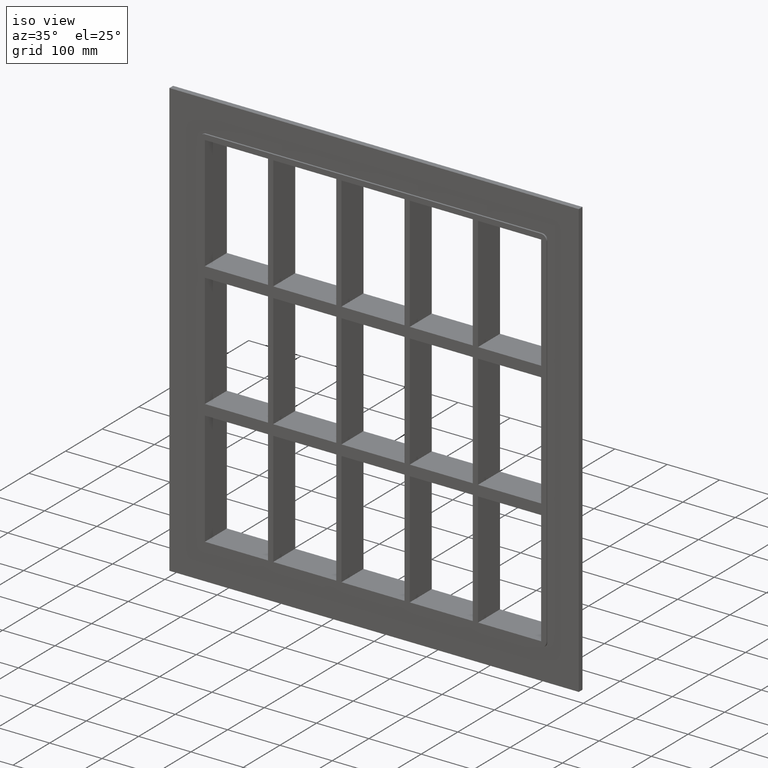
[diagram: clean part render]
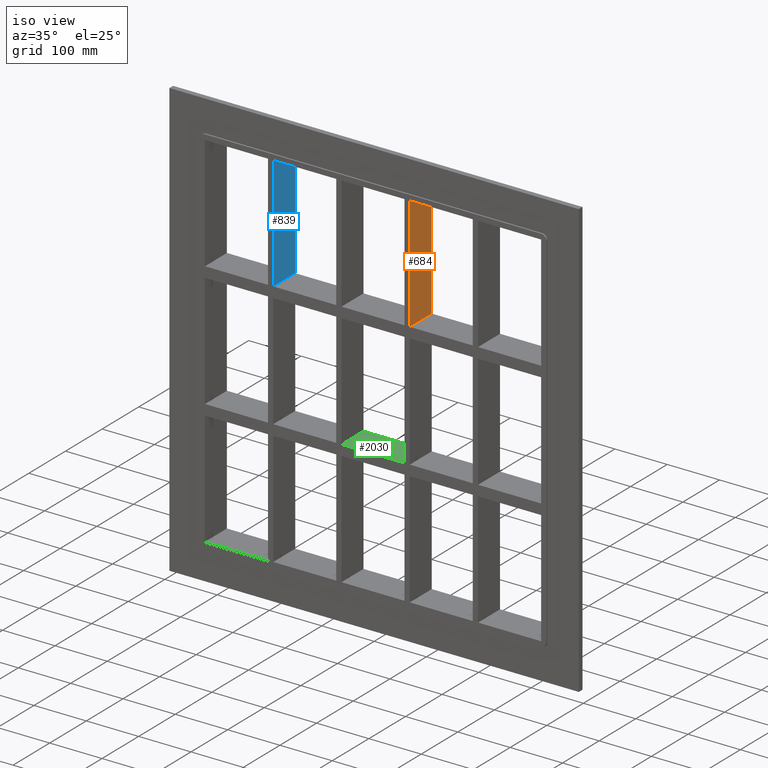
[diagram: same view with three faces highlighted in distinct colors, each labeled with its STEP entity id]
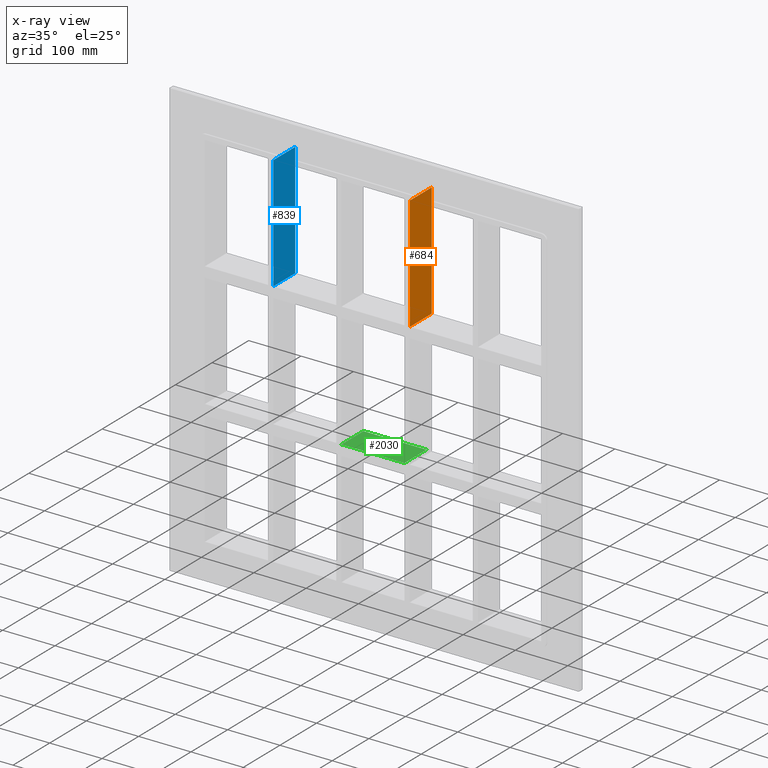
[diagram: x-ray of the same camera — body ghosted, the three highlighted faces saturated]
A machine part, iso view with three faces highlighted in distinct colors.
The next image is the same camera in x-ray (body ghosted, the three faces saturated) — at least one of them is partly hidden behind the body in this view.
Their STEP definitions:

[orange] entity #684 — the highlighted planar face has unit normal (1, 0, 0).
#443=CARTESIAN_POINT('',(70.249999999992738,57.0,128.99999999999994));
#444=VERTEX_POINT('',#443);
#451=CARTESIAN_POINT('',(70.249999999992738,-3.0,128.99999999999994));
#452=VERTEX_POINT('',#451);
#453=CARTESIAN_POINT('',(70.249999999992738,-3.0,128.99999999999994));
#454=DIRECTION('',(0.0,1.0,0.0));
#455=VECTOR('',#454,60.0);
#456=LINE('',#453,#455);
#457=EDGE_CURVE('',#452,#444,#456,.T.);
#654=CARTESIAN_POINT('',(70.249999999992738,-3.0,347.0));
#655=DIRECTION('',(1.0,0.0,0.0));
#656=DIRECTION('',(0.0,0.0,-1.0));
#657=AXIS2_PLACEMENT_3D('',#654,#655,#656);
#658=PLANE('',#657);
#659=ORIENTED_EDGE('',*,*,#457,.T.);
#660=CARTESIAN_POINT('',(70.249999999992738,57.0,347.0));
#661=VERTEX_POINT('',#660);
#662=CARTESIAN_POINT('',(70.249999999992738,57.0,347.0));
#663=DIRECTION('',(0.0,0.0,-1.0));
#664=VECTOR('',#663,218.00000000000009);
#665=LINE('',#662,#664);
#666=EDGE_CURVE('',#661,#444,#665,.T.);
#667=ORIENTED_EDGE('',*,*,#666,.F.);
#668=CARTESIAN_POINT('',(70.249999999992738,-3.0,347.0));
#669=VERTEX_POINT('',#668);
#670=CARTESIAN_POINT('',(70.249999999992738,-3.0,346.99999999999994));
#671=DIRECTION('',(0.0,1.0,0.0));
#672=VECTOR('',#671,60.000000000000007);
#673=LINE('',#670,#672);
#674=EDGE_CURVE('',#669,#661,#673,.T.);
#675=ORIENTED_EDGE('',*,*,#674,.F.);
#676=CARTESIAN_POINT('',(70.249999999992738,-3.0,347.0));
#677=DIRECTION('',(0.0,0.0,-1.0));
#678=VECTOR('',#677,218.00000000000009);
#679=LINE('',#676,#678);
#680=EDGE_CURVE('',#669,#452,#679,.T.);
#681=ORIENTED_EDGE('',*,*,#680,.T.);
#682=EDGE_LOOP('',(#659,#667,#675,#681));
#683=FACE_OUTER_BOUND('',#682,.T.);
#684=ADVANCED_FACE('',(#683),#658,.T.);

[blue] entity #839 — the highlighted planar face has unit normal (1, 0, 0).
#363=CARTESIAN_POINT('',(-190.75000000000728,57.0,128.99999999999994));
#364=VERTEX_POINT('',#363);
#371=CARTESIAN_POINT('',(-190.75000000000728,-3.0,128.99999999999994));
#372=VERTEX_POINT('',#371);
#373=CARTESIAN_POINT('',(-190.75000000000728,-3.0,128.99999999999994));
#374=DIRECTION('',(0.0,1.0,0.0));
#375=VECTOR('',#374,60.0);
#376=LINE('',#373,#375);
#377=EDGE_CURVE('',#372,#364,#376,.T.);
#809=CARTESIAN_POINT('',(-190.75000000000728,-3.0,347.0));
#810=DIRECTION('',(1.0,0.0,0.0));
#811=DIRECTION('',(0.0,0.0,-1.0));
#812=AXIS2_PLACEMENT_3D('',#809,#810,#811);
#813=PLANE('',#812);
#814=ORIENTED_EDGE('',*,*,#377,.T.);
#815=CARTESIAN_POINT('',(-190.75000000000728,57.0,347.0));
#816=VERTEX_POINT('',#815);
#817=CARTESIAN_POINT('',(-190.75000000000728,57.0,347.0));
#818=DIRECTION('',(0.0,0.0,-1.0));
#819=VECTOR('',#818,218.00000000000009);
#820=LINE('',#817,#819);
#821=EDGE_CURVE('',#816,#364,#820,.T.);
#822=ORIENTED_EDGE('',*,*,#821,.F.);
#823=CARTESIAN_POINT('',(-190.75000000000728,-3.0,347.0));
#824=VERTEX_POINT('',#823);
#825=CARTESIAN_POINT('',(-190.75000000000728,-3.0,346.99999999999994));
#826=DIRECTION('',(0.0,1.0,0.0));
#827=VECTOR('',#826,60.000000000000007);
#828=LINE('',#825,#827);
#829=EDGE_CURVE('',#824,#816,#828,.T.);
#830=ORIENTED_EDGE('',*,*,#829,.F.);
#831=CARTESIAN_POINT('',(-190.75000000000728,-3.0,347.0));
#832=DIRECTION('',(0.0,0.0,-1.0));
#833=VECTOR('',#832,218.00000000000009);
#834=LINE('',#831,#833);
#835=EDGE_CURVE('',#824,#372,#834,.T.);
#836=ORIENTED_EDGE('',*,*,#835,.T.);
#837=EDGE_LOOP('',(#814,#822,#830,#836));
#838=FACE_OUTER_BOUND('',#837,.T.);
#839=ADVANCED_FACE('',(#838),#813,.T.);

[green] entity #2030 — the highlighted planar face has unit normal (0, 0, 1).
#1021=CARTESIAN_POINT('',(-60.250000000007269,57.0,-109.00000000000006));
#1022=VERTEX_POINT('',#1021);
#1029=CARTESIAN_POINT('',(60.249999999998678,57.0,-109.00000000000006));
#1030=VERTEX_POINT('',#1029);
#1031=CARTESIAN_POINT('',(-60.250000000007276,57.0,-109.00000000000006));
#1032=DIRECTION('',(1.0,0.0,0.0));
#1033=VECTOR('',#1032,120.50000000000597);
#1034=LINE('',#1031,#1033);
#1035=EDGE_CURVE('',#1022,#1030,#1034,.T.);
#1369=CARTESIAN_POINT('',(60.249999999998678,-3.0,-109.00000000000006));
#1370=VERTEX_POINT('',#1369);
#1371=CARTESIAN_POINT('',(60.2499999999987,-3.0,-109.00000000000006));
#1372=DIRECTION('',(0.0,1.0,0.0));
#1373=VECTOR('',#1372,60.0);
#1374=LINE('',#1371,#1373);
#1375=EDGE_CURVE('',#1370,#1030,#1374,.T.);
#1533=CARTESIAN_POINT('',(-60.250000000007269,-3.0,-109.00000000000006));
#1534=VERTEX_POINT('',#1533);
#1541=CARTESIAN_POINT('',(-60.250000000007248,57.0,-109.00000000000006));
#1542=DIRECTION('',(0.0,-1.0,0.0));
#1543=VECTOR('',#1542,60.0);
#1544=LINE('',#1541,#1543);
#1545=EDGE_CURVE('',#1022,#1534,#1544,.T.);
#1773=CARTESIAN_POINT('',(-60.250000000007276,-3.0,-109.00000000000006));
#1774=DIRECTION('',(1.0,0.0,0.0));
#1775=VECTOR('',#1774,120.50000000000597);
#1776=LINE('',#1773,#1775);
#1777=EDGE_CURVE('',#1534,#1370,#1776,.T.);
#2019=CARTESIAN_POINT('',(-321.24999999999966,-3.0,-109.00000000000006));
#2020=DIRECTION('',(0.0,0.0,1.0));
#2021=DIRECTION('',(1.0,0.0,0.0));
#2022=AXIS2_PLACEMENT_3D('',#2019,#2020,#2021);
#2023=PLANE('',#2022);
#2024=ORIENTED_EDGE('',*,*,#1375,.T.);
#2025=ORIENTED_EDGE('',*,*,#1035,.F.);
#2026=ORIENTED_EDGE('',*,*,#1545,.T.);
#2027=ORIENTED_EDGE('',*,*,#1777,.T.);
#2028=EDGE_LOOP('',(#2024,#2025,#2026,#2027));
#2029=FACE_OUTER_BOUND('',#2028,.T.);
#2030=ADVANCED_FACE('',(#2029),#2023,.T.);